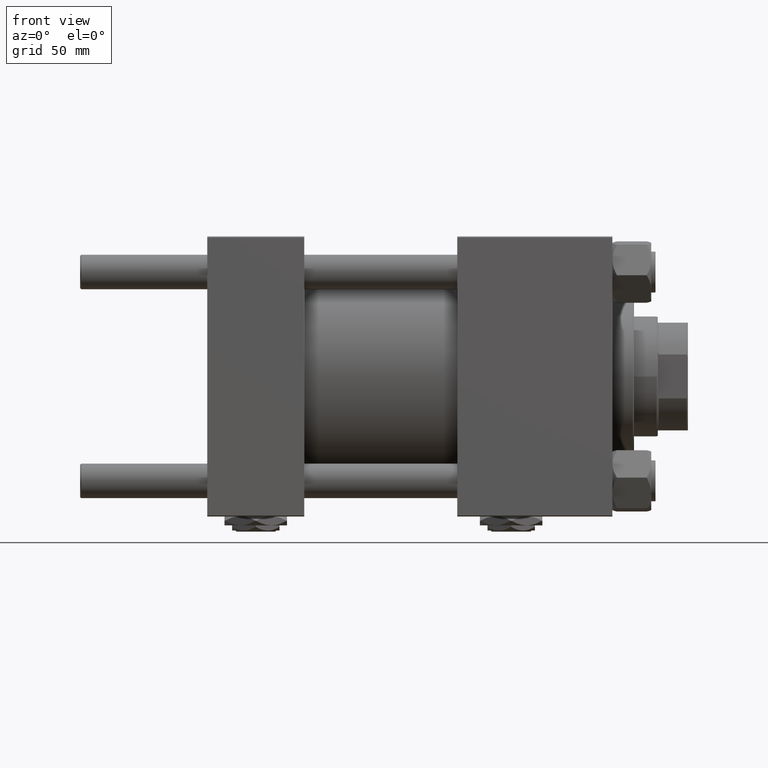
[diagram: clean part render]
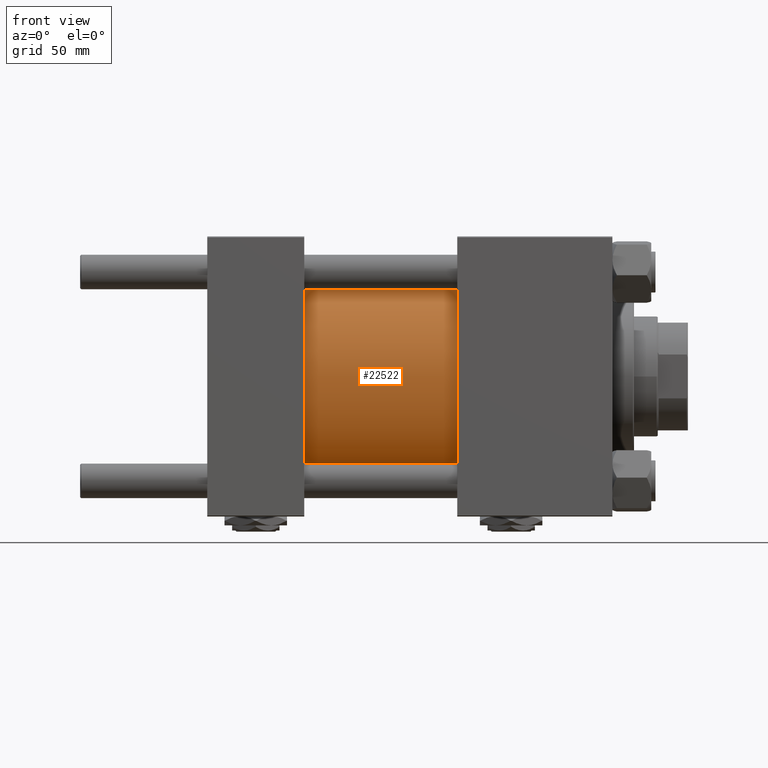
[diagram: same view with one face highlighted and labeled with its STEP entity id]
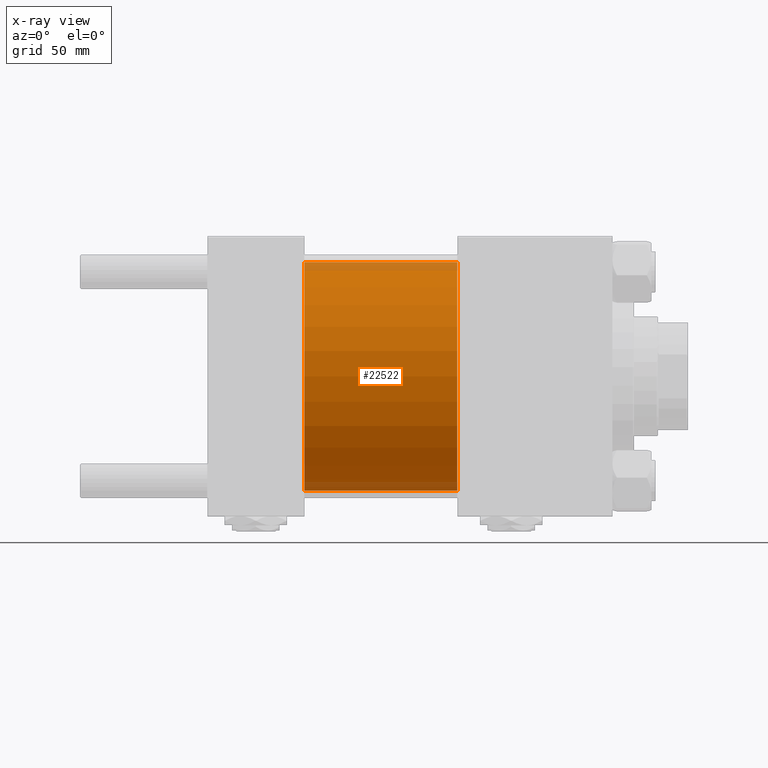
[diagram: x-ray of the same camera — body ghosted, the highlighted face saturated]
A machine part, front view. The second image highlights one B-rep face of the part: STEP entity #22522.
The next image is the same camera in x-ray: the body ghosted, the highlighted face saturated — about 7% of this face is hidden behind the body in this view.
In plain terms, the highlighted cylindrical surface (partial cylindrical patch) has radius 53 mm, axis along (-1, -0, -0).
Its self-contained STEP definition (entity closure, byte-faithful):
#208 = CARTESIAN_POINT ( 'NONE',  ( 115.9999999999999858, 0.000000000000000000, 53.00000000000000711 ) ) ;
#1101 = LINE ( 'NONE', #32941, #8449 ) ;
#4388 = CARTESIAN_POINT ( 'NONE',  ( 45.00000000000000000, 6.490628035480973107E-15, -53.00000000000000711 ) ) ;
#4929 = VECTOR ( 'NONE', #8173, 1000.000000000000000 ) ;
#6073 = EDGE_CURVE ( 'NONE', #10157, #19620, #51861, .T. ) ;
#7894 = DIRECTION ( 'NONE',  ( 0.000000000000000000, 0.000000000000000000, -1.000000000000000000 ) ) ;
#8173 = DIRECTION ( 'NONE',  ( -1.000000000000000000, -0.000000000000000000, -0.000000000000000000 ) ) ;
#8375 = CARTESIAN_POINT ( 'NONE',  ( 45.00000000000000000, 0.000000000000000000, 53.00000000000000711 ) ) ;
#8449 = VECTOR ( 'NONE', #21541, 1000.000000000000000 ) ;
#10157 = VERTEX_POINT ( 'NONE', #31127 ) ;
#12400 = CARTESIAN_POINT ( 'NONE',  ( 115.9999999999999858, 0.000000000000000000, 0.000000000000000000 ) ) ;
#13466 = DIRECTION ( 'NONE',  ( 0.000000000000000000, 0.000000000000000000, 1.000000000000000000 ) ) ;
#14413 = AXIS2_PLACEMENT_3D ( 'NONE', #30130, #25889, #42109 ) ;
#17117 = AXIS2_PLACEMENT_3D ( 'NONE', #23551, #40546, #7894 ) ;
#17738 = ORIENTED_EDGE ( 'NONE', *, *, #51297, .T. ) ;
#18413 = VERTEX_POINT ( 'NONE', #8375 ) ;
#18520 = EDGE_LOOP ( 'NONE', ( #48138, #51340, #47271, #17738 ) ) ;
#19620 = VERTEX_POINT ( 'NONE', #29805 ) ;
#20888 = CYLINDRICAL_SURFACE ( 'NONE', #26799, 53.00000000000000711 ) ;
#21541 = DIRECTION ( 'NONE',  ( -1.000000000000000000, -0.000000000000000000, -0.000000000000000000 ) ) ;
#22522 = ADVANCED_FACE ( 'NONE', ( #49293 ), #20888, .T. ) ;
#23551 = CARTESIAN_POINT ( 'NONE',  ( 115.9999999999999858, 0.000000000000000000, 0.000000000000000000 ) ) ;
#25889 = DIRECTION ( 'NONE',  ( 1.000000000000000000, -0.000000000000000000, 0.000000000000000000 ) ) ;
#26799 = AXIS2_PLACEMENT_3D ( 'NONE', #12400, #40820, #13466 ) ;
#29805 = CARTESIAN_POINT ( 'NONE',  ( 115.9999999999999858, 6.490628035480973107E-15, -53.00000000000000711 ) ) ;
#30130 = CARTESIAN_POINT ( 'NONE',  ( 45.00000000000000000, 0.000000000000000000, 0.000000000000000000 ) ) ;
#31127 = CARTESIAN_POINT ( 'NONE',  ( 115.9999999999999858, 0.000000000000000000, 53.00000000000000711 ) ) ;
#31236 = EDGE_CURVE ( 'NONE', #10157, #18413, #40054, .T. ) ;
#32941 = CARTESIAN_POINT ( 'NONE',  ( 115.9999999999999858, 6.490628035480973107E-15, -53.00000000000000711 ) ) ;
#34917 = CIRCLE ( 'NONE', #14413, 53.00000000000000711 ) ;
#39344 = VERTEX_POINT ( 'NONE', #4388 ) ;
#40054 = LINE ( 'NONE', #208, #4929 ) ;
#40546 = DIRECTION ( 'NONE',  ( 1.000000000000000000, 0.000000000000000000, 0.000000000000000000 ) ) ;
#40820 = DIRECTION ( 'NONE',  ( -1.000000000000000000, -0.000000000000000000, -0.000000000000000000 ) ) ;
#42109 = DIRECTION ( 'NONE',  ( 0.000000000000000000, 0.000000000000000000, 1.000000000000000000 ) ) ;
#47271 = ORIENTED_EDGE ( 'NONE', *, *, #31236, .T. ) ;
#48138 = ORIENTED_EDGE ( 'NONE', *, *, #51908, .F. ) ;
#49293 = FACE_OUTER_BOUND ( 'NONE', #18520, .T. ) ;
#51297 = EDGE_CURVE ( 'NONE', #18413, #39344, #34917, .T. ) ;
#51340 = ORIENTED_EDGE ( 'NONE', *, *, #6073, .F. ) ;
#51861 = CIRCLE ( 'NONE', #17117, 53.00000000000000711 ) ;
#51908 = EDGE_CURVE ( 'NONE', #19620, #39344, #1101, .T. ) ;